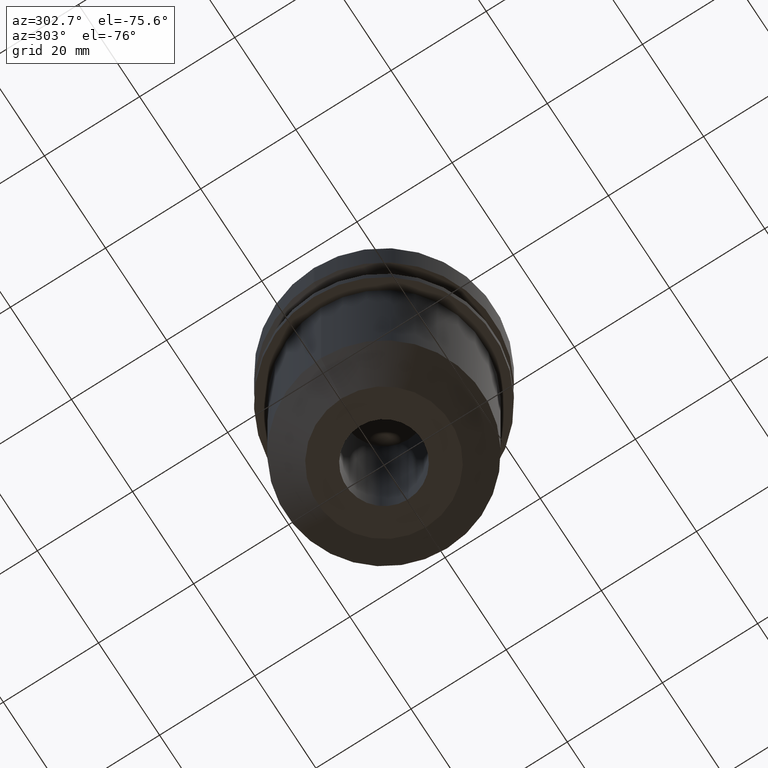
[diagram: clean part render]
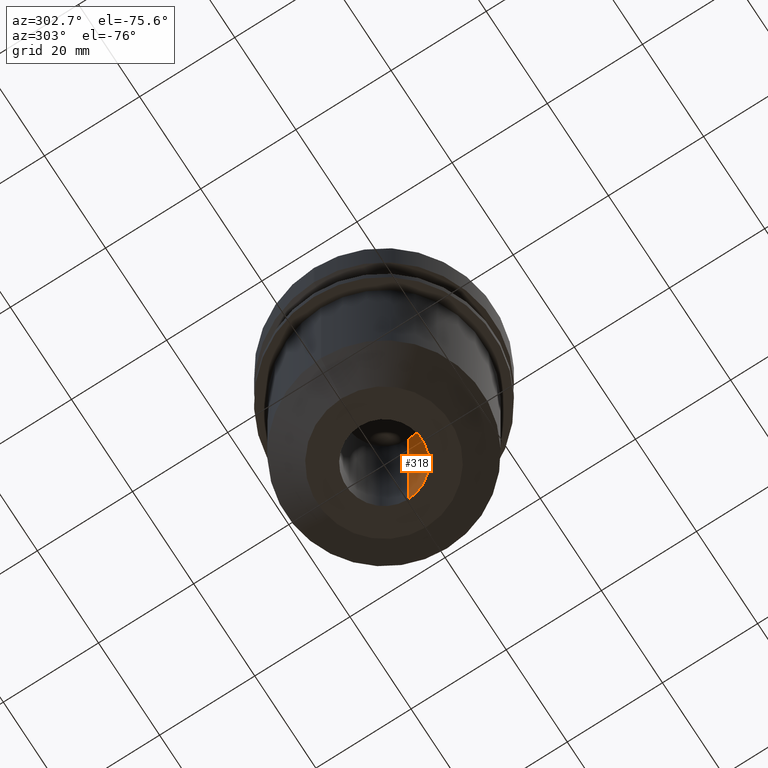
[diagram: same view with one face highlighted and labeled with its STEP entity id]
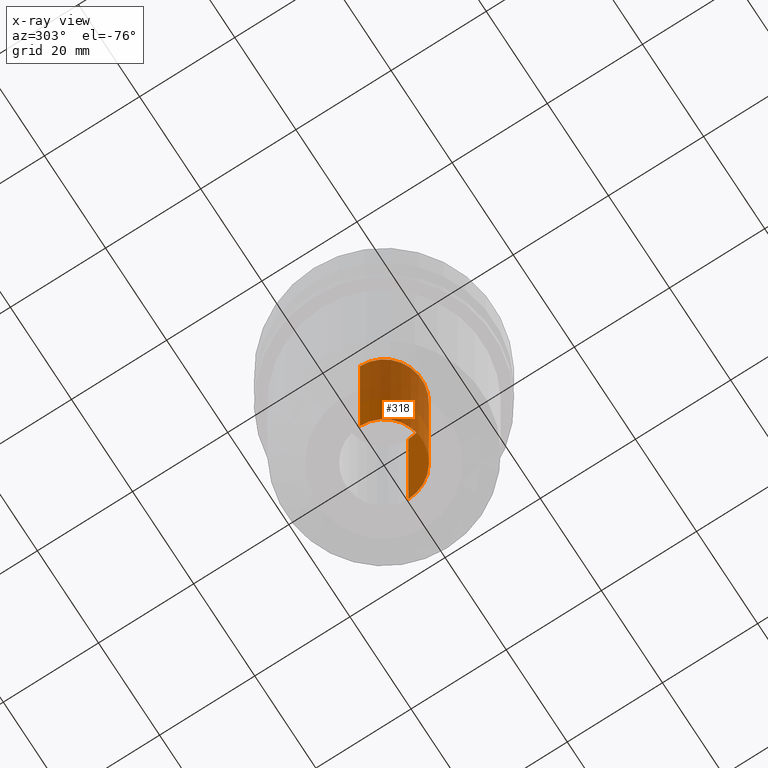
[diagram: x-ray of the same camera — body ghosted, the highlighted face saturated]
A machine part, auxiliary view. The second image highlights one B-rep face of the part: STEP entity #318.
The next image is the same camera in x-ray: the body ghosted, the highlighted face saturated — about 52% of this face is hidden behind the body in this view.
In plain terms, the highlighted cylindrical surface (partial cylindrical patch) has radius 7.9375 mm, axis along (-0, -0, 1).
Its self-contained STEP definition (entity closure, byte-faithful):
#27 = DIRECTION ( 'NONE',  ( -0.000000000000000000, -0.000000000000000000, 1.000000000000000000 ) ) ;
#39 = CARTESIAN_POINT ( 'NONE',  ( 7.937500000000000000, 0.000000000000000000, -63.50000000000000000 ) ) ;
#88 = CIRCLE ( 'NONE', #264, 7.937500000000000000 ) ;
#91 = CYLINDRICAL_SURFACE ( 'NONE', #350, 7.937499999999996447 ) ;
#129 = EDGE_CURVE ( 'NONE', #509, #591, #353, .T. ) ;
#157 = VERTEX_POINT ( 'NONE', #486 ) ;
#180 = VERTEX_POINT ( 'NONE', #305 ) ;
#184 = CIRCLE ( 'NONE', #710, 7.937499999999996447 ) ;
#203 = DIRECTION ( 'NONE',  ( 1.000000000000000000, 0.000000000000000000, 0.000000000000000000 ) ) ;
#264 = AXIS2_PLACEMENT_3D ( 'NONE', #488, #485, #354 ) ;
#271 = ORIENTED_EDGE ( 'NONE', *, *, #477, .T. ) ;
#281 = DIRECTION ( 'NONE',  ( -0.000000000000000000, -0.000000000000000000, 1.000000000000000000 ) ) ;
#305 = CARTESIAN_POINT ( 'NONE',  ( -7.937499999999996447, 9.720633968232112245E-16, -20.99999999999999645 ) ) ;
#318 = ADVANCED_FACE ( 'NONE', ( #386 ), #91, .F. ) ;
#350 = AXIS2_PLACEMENT_3D ( 'NONE', #567, #27, #203 ) ;
#353 = LINE ( 'NONE', #541, #697 ) ;
#354 = DIRECTION ( 'NONE',  ( 1.000000000000000000, 0.000000000000000000, 0.000000000000000000 ) ) ;
#357 = EDGE_CURVE ( 'NONE', #180, #591, #184, .T. ) ;
#386 = FACE_OUTER_BOUND ( 'NONE', #618, .T. ) ;
#465 = DIRECTION ( 'NONE',  ( 1.000000000000000000, 0.000000000000000000, 0.000000000000000000 ) ) ;
#471 = LINE ( 'NONE', #703, #761 ) ;
#477 = EDGE_CURVE ( 'NONE', #157, #180, #471, .T. ) ;
#485 = DIRECTION ( 'NONE',  ( -0.000000000000000000, -0.000000000000000000, 1.000000000000000000 ) ) ;
#486 = CARTESIAN_POINT ( 'NONE',  ( -7.937500000000000000, 9.720633968232116190E-16, -63.50000000000000000 ) ) ;
#488 = CARTESIAN_POINT ( 'NONE',  ( 0.000000000000000000, 0.000000000000000000, -63.50000000000000000 ) ) ;
#509 = VERTEX_POINT ( 'NONE', #39 ) ;
#527 = CARTESIAN_POINT ( 'NONE',  ( 0.000000000000000000, 0.000000000000000000, -20.99999999999999645 ) ) ;
#535 = DIRECTION ( 'NONE',  ( -0.000000000000000000, -0.000000000000000000, 1.000000000000000000 ) ) ;
#537 = EDGE_CURVE ( 'NONE', #157, #509, #88, .T. ) ;
#541 = CARTESIAN_POINT ( 'NONE',  ( 7.937499999999996447, 0.000000000000000000, 0.000000000000000000 ) ) ;
#557 = ORIENTED_EDGE ( 'NONE', *, *, #537, .F. ) ;
#567 = CARTESIAN_POINT ( 'NONE',  ( 0.000000000000000000, 0.000000000000000000, 0.000000000000000000 ) ) ;
#591 = VERTEX_POINT ( 'NONE', #650 ) ;
#618 = EDGE_LOOP ( 'NONE', ( #557, #271, #713, #704 ) ) ;
#650 = CARTESIAN_POINT ( 'NONE',  ( 7.937499999999996447, 0.000000000000000000, -20.99999999999999645 ) ) ;
#697 = VECTOR ( 'NONE', #772, 1000.000000000000000 ) ;
#703 = CARTESIAN_POINT ( 'NONE',  ( -7.937499999999996447, 9.720633968232112245E-16, 0.000000000000000000 ) ) ;
#704 = ORIENTED_EDGE ( 'NONE', *, *, #129, .F. ) ;
#710 = AXIS2_PLACEMENT_3D ( 'NONE', #527, #535, #465 ) ;
#713 = ORIENTED_EDGE ( 'NONE', *, *, #357, .T. ) ;
#761 = VECTOR ( 'NONE', #281, 1000.000000000000000 ) ;
#772 = DIRECTION ( 'NONE',  ( -0.000000000000000000, -0.000000000000000000, 1.000000000000000000 ) ) ;